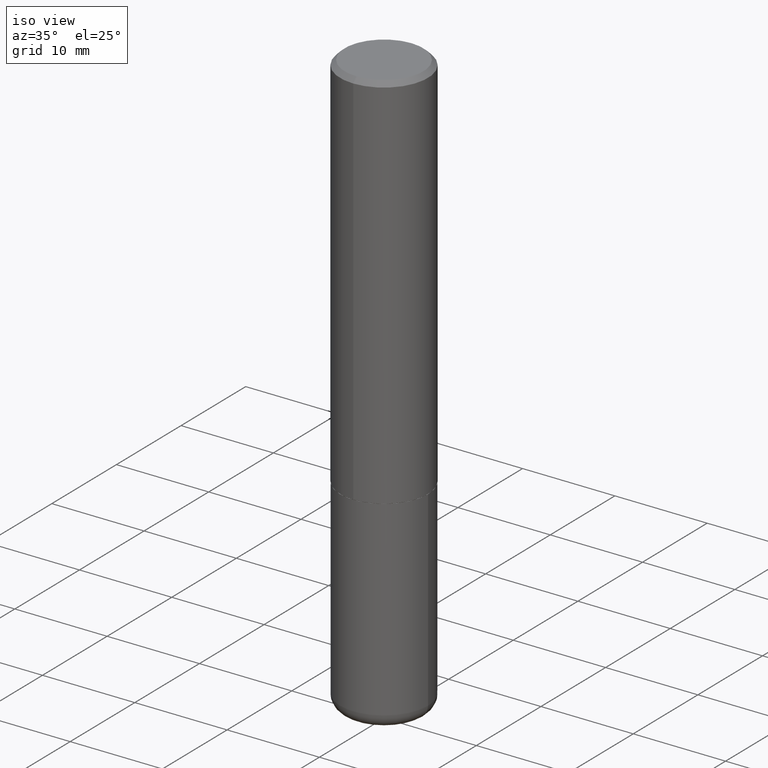
[diagram: clean part render]
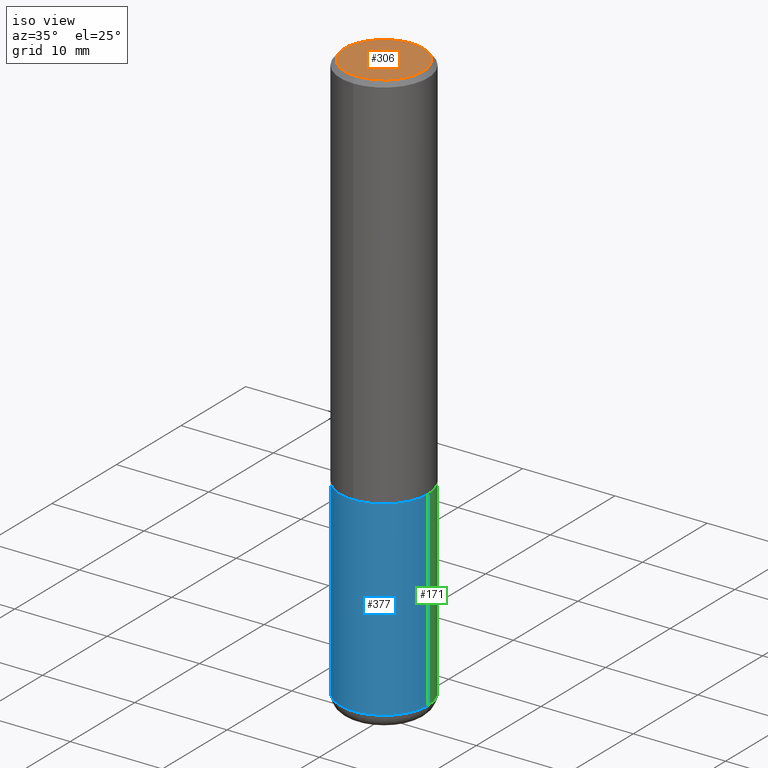
[diagram: same view with three faces highlighted in distinct colors, each labeled with its STEP entity id]
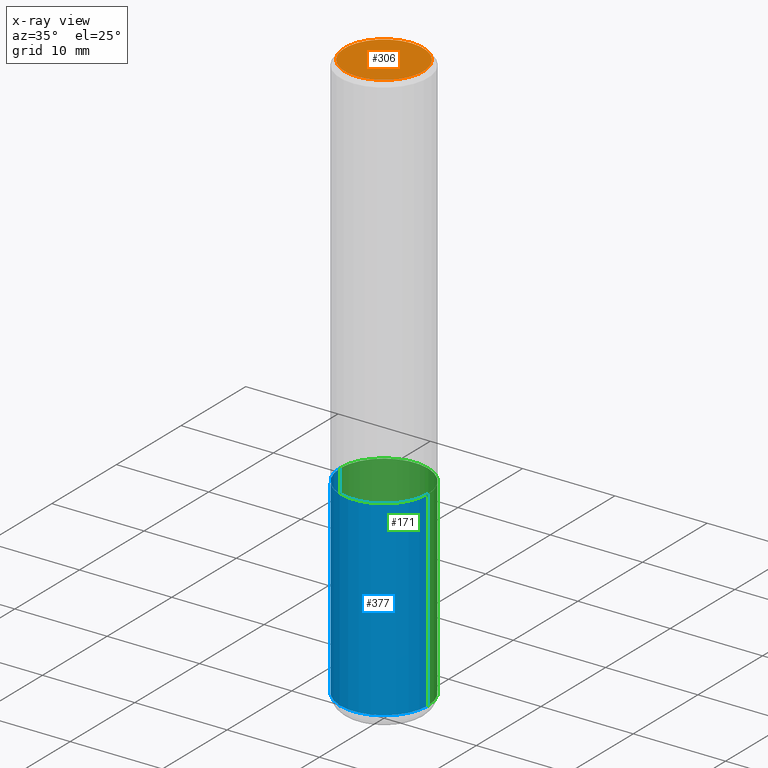
[diagram: x-ray of the same camera — body ghosted, the three highlighted faces saturated]
A machine part, iso view with three faces highlighted in distinct colors.
The next image is the same camera in x-ray (body ghosted, the three faces saturated) — at least one of them is partly hidden behind the body in this view.
Their STEP definitions:

[orange] entity #306 — the highlighted planar face has unit normal (0, -0, -1).
#7 = EDGE_CURVE ( 'NONE', #244, #278, #225, .T. ) ;
#9 = DIRECTION ( 'NONE',  ( 2.445663447522104049E-29, -3.491202601370310888E-15, -1.000000000000000000 ) ) ;
#26 = ORIENTED_EDGE ( 'NONE', *, *, #228, .T. ) ;
#34 = DIRECTION ( 'NONE',  ( -2.445663447522104049E-29, 3.491202601370311283E-15, 1.000000000000000000 ) ) ;
#80 = CARTESIAN_POINT ( 'NONE',  ( 1.169646248512448806E-15, 0.1674999999999998990, -5.378461426017720867E-16 ) ) ;
#136 = AXIS2_PLACEMENT_3D ( 'NONE', #319, #413, #216 ) ;
#149 = AXIS2_PLACEMENT_3D ( 'NONE', #80, #9, #261 ) ;
#200 = PLANE ( 'NONE',  #149 ) ;
#204 = ORIENTED_EDGE ( 'NONE', *, *, #7, .T. ) ;
#208 = EDGE_LOOP ( 'NONE', ( #204, #26 ) ) ;
#216 = DIRECTION ( 'NONE',  ( -6.982962677686265922E-15, -1.000000000000000000, 3.491202601370310888E-15 ) ) ;
#225 = CIRCLE ( 'NONE', #226, 0.1674999999999998990 ) ;
#226 = AXIS2_PLACEMENT_3D ( 'NONE', #418, #34, #386 ) ;
#228 = EDGE_CURVE ( 'NONE', #278, #244, #316, .T. ) ;
#244 = VERTEX_POINT ( 'NONE', #314 ) ;
#259 = CARTESIAN_POINT ( 'NONE',  ( -1.217738394604445850E-15, -0.1674999999999998990, 6.786370219850360017E-16 ) ) ;
#261 = DIRECTION ( 'NONE',  ( 6.982962677686265922E-15, 1.000000000000000000, -3.491202601370310888E-15 ) ) ;
#278 = VERTEX_POINT ( 'NONE', #259 ) ;
#292 = FACE_OUTER_BOUND ( 'NONE', #208, .T. ) ;
#306 = ADVANCED_FACE ( 'NONE', ( #292 ), #200, .F. ) ;
#314 = CARTESIAN_POINT ( 'NONE',  ( 1.239475875289311907E-15, 0.1674999999999998990, -4.909158494740175798E-16 ) ) ;
#316 = CIRCLE ( 'NONE', #136, 0.1674999999999998990 ) ;
#319 = CARTESIAN_POINT ( 'NONE',  ( -2.295514049680946619E-45, 3.276863229013765432E-31, 9.386058625550929724E-17 ) ) ;
#386 = DIRECTION ( 'NONE',  ( -6.982962677686265922E-15, -1.000000000000000000, 3.491202601370310888E-15 ) ) ;
#413 = DIRECTION ( 'NONE',  ( -2.445663447522104049E-29, 3.491202601370311283E-15, 1.000000000000000000 ) ) ;
#418 = CARTESIAN_POINT ( 'NONE',  ( -2.295514049680946619E-45, 3.276863229013765432E-31, 9.386058625550929724E-17 ) ) ;

[blue] entity #377 — the highlighted cylindrical surface (partial cylindrical patch) has radius 4.7625 mm, axis along (-0, 0, 1).
#12 = CARTESIAN_POINT ( 'NONE',  ( 0.000000000000000000, 0.000000000000000000, 0.000000000000000000 ) ) ;
#25 = DIRECTION ( 'NONE',  ( 1.000000000000000000, -6.982962677686266711E-15, 4.876176775795935793E-29 ) ) ;
#28 = CARTESIAN_POINT ( 'NONE',  ( 5.966943887091733341E-29, -8.519214466777275048E-15, -2.440000000000000391 ) ) ;
#42 = CARTESIAN_POINT ( 'NONE',  ( 0.1875000000000000278, -6.982962677686288010E-15, -1.625000000000000222 ) ) ;
#58 = CARTESIAN_POINT ( 'NONE',  ( -0.1875000000000000278, -5.764168191648507360E-15, -1.625000000000000222 ) ) ;
#70 = DIRECTION ( 'NONE',  ( 1.000000000000000000, -6.982962677686263555E-15, 0.000000000000000000 ) ) ;
#82 = FACE_OUTER_BOUND ( 'NONE', #167, .T. ) ;
#84 = DIRECTION ( 'NONE',  ( -2.445468806185136597E-29, 3.491481338843145583E-15, 1.000000000000000000 ) ) ;
#89 = VERTEX_POINT ( 'NONE', #159 ) ;
#94 = DIRECTION ( 'NONE',  ( -2.445468806185136597E-29, 3.491481338843145583E-15, 1.000000000000000000 ) ) ;
#97 = CARTESIAN_POINT ( 'NONE',  ( 0.1874999999999999722, -1.309305502066174811E-15, 9.142831454617378210E-30 ) ) ;
#117 = CYLINDRICAL_SURFACE ( 'NONE', #164, 0.1874999999999999722 ) ;
#135 = VERTEX_POINT ( 'NONE', #58 ) ;
#141 = EDGE_CURVE ( 'NONE', #326, #89, #258, .T. ) ;
#145 = ORIENTED_EDGE ( 'NONE', *, *, #168, .F. ) ;
#156 = DIRECTION ( 'NONE',  ( -2.445468806185136877E-29, 3.491481338843145188E-15, 1.000000000000000000 ) ) ;
#159 = CARTESIAN_POINT ( 'NONE',  ( 0.1874999999999999722, -9.828519968843450056E-15, -2.440000000000000391 ) ) ;
#164 = AXIS2_PLACEMENT_3D ( 'NONE', #12, #84, #25 ) ;
#167 = EDGE_LOOP ( 'NONE', ( #145, #347, #206, #280 ) ) ;
#168 = EDGE_CURVE ( 'NONE', #326, #135, #189, .T. ) ;
#189 = LINE ( 'NONE', #255, #201 ) ;
#198 = DIRECTION ( 'NONE',  ( -2.445468806185136597E-29, 3.491481338843145583E-15, 1.000000000000000000 ) ) ;
#201 = VECTOR ( 'NONE', #390, 39.37007874015748143 ) ;
#206 = ORIENTED_EDGE ( 'NONE', *, *, #371, .T. ) ;
#229 = AXIS2_PLACEMENT_3D ( 'NONE', #28, #94, #70 ) ;
#255 = CARTESIAN_POINT ( 'NONE',  ( -0.1874999999999999722, 1.332267629550187651E-15, -9.223003294227946589E-30 ) ) ;
#258 = CIRCLE ( 'NONE', #229, 0.1874999999999999722 ) ;
#263 = AXIS2_PLACEMENT_3D ( 'NONE', #361, #198, #324 ) ;
#280 = ORIENTED_EDGE ( 'NONE', *, *, #358, .F. ) ;
#312 = VERTEX_POINT ( 'NONE', #42 ) ;
#324 = DIRECTION ( 'NONE',  ( 1.000000000000000000, -6.982962677686266711E-15, 0.000000000000000000 ) ) ;
#326 = VERTEX_POINT ( 'NONE', #359 ) ;
#347 = ORIENTED_EDGE ( 'NONE', *, *, #141, .T. ) ;
#358 = EDGE_CURVE ( 'NONE', #135, #312, #369, .T. ) ;
#359 = CARTESIAN_POINT ( 'NONE',  ( -0.1874999999999999722, -7.186946837227088777E-15, -2.440000000000000391 ) ) ;
#361 = CARTESIAN_POINT ( 'NONE',  ( 3.973886810050848091E-29, -5.673657175620113002E-15, -1.625000000000000222 ) ) ;
#369 = CIRCLE ( 'NONE', #263, 0.1875000000000000278 ) ;
#370 = LINE ( 'NONE', #97, #375 ) ;
#371 = EDGE_CURVE ( 'NONE', #89, #312, #370, .T. ) ;
#375 = VECTOR ( 'NONE', #156, 39.37007874015748143 ) ;
#377 = ADVANCED_FACE ( 'NONE', ( #82 ), #117, .T. ) ;
#390 = DIRECTION ( 'NONE',  ( -2.445468806185136877E-29, 3.491481338843145188E-15, 1.000000000000000000 ) ) ;

[green] entity #171 — the highlighted cylindrical surface (partial cylindrical patch) has radius 4.7625 mm, axis along (-0, 0, 1).
#10 = CARTESIAN_POINT ( 'NONE',  ( 5.966943887091733341E-29, -8.519214466777275048E-15, -2.440000000000000391 ) ) ;
#13 = AXIS2_PLACEMENT_3D ( 'NONE', #318, #71, #196 ) ;
#24 = CIRCLE ( 'NONE', #109, 0.1874999999999999722 ) ;
#42 = CARTESIAN_POINT ( 'NONE',  ( 0.1875000000000000278, -6.982962677686288010E-15, -1.625000000000000222 ) ) ;
#48 = EDGE_CURVE ( 'NONE', #312, #135, #391, .T. ) ;
#58 = CARTESIAN_POINT ( 'NONE',  ( -0.1875000000000000278, -5.764168191648507360E-15, -1.625000000000000222 ) ) ;
#63 = CYLINDRICAL_SURFACE ( 'NONE', #130, 0.1874999999999999722 ) ;
#64 = ORIENTED_EDGE ( 'NONE', *, *, #168, .T. ) ;
#65 = FACE_OUTER_BOUND ( 'NONE', #409, .T. ) ;
#71 = DIRECTION ( 'NONE',  ( -2.445468806185136597E-29, 3.491481338843145583E-15, 1.000000000000000000 ) ) ;
#89 = VERTEX_POINT ( 'NONE', #159 ) ;
#97 = CARTESIAN_POINT ( 'NONE',  ( 0.1874999999999999722, -1.309305502066174811E-15, 9.142831454617378210E-30 ) ) ;
#98 = DIRECTION ( 'NONE',  ( -2.445468806185136597E-29, 3.491481338843145583E-15, 1.000000000000000000 ) ) ;
#102 = DIRECTION ( 'NONE',  ( -2.445468806185136597E-29, 3.491481338843145583E-15, 1.000000000000000000 ) ) ;
#109 = AXIS2_PLACEMENT_3D ( 'NONE', #10, #102, #327 ) ;
#130 = AXIS2_PLACEMENT_3D ( 'NONE', #279, #98, #313 ) ;
#135 = VERTEX_POINT ( 'NONE', #58 ) ;
#156 = DIRECTION ( 'NONE',  ( -2.445468806185136877E-29, 3.491481338843145188E-15, 1.000000000000000000 ) ) ;
#159 = CARTESIAN_POINT ( 'NONE',  ( 0.1874999999999999722, -9.828519968843450056E-15, -2.440000000000000391 ) ) ;
#168 = EDGE_CURVE ( 'NONE', #326, #135, #189, .T. ) ;
#171 = ADVANCED_FACE ( 'NONE', ( #65 ), #63, .T. ) ;
#189 = LINE ( 'NONE', #255, #201 ) ;
#196 = DIRECTION ( 'NONE',  ( 1.000000000000000000, -6.982962677686266711E-15, 0.000000000000000000 ) ) ;
#201 = VECTOR ( 'NONE', #390, 39.37007874015748143 ) ;
#240 = ORIENTED_EDGE ( 'NONE', *, *, #315, .T. ) ;
#255 = CARTESIAN_POINT ( 'NONE',  ( -0.1874999999999999722, 1.332267629550187651E-15, -9.223003294227946589E-30 ) ) ;
#279 = CARTESIAN_POINT ( 'NONE',  ( 0.000000000000000000, 0.000000000000000000, 0.000000000000000000 ) ) ;
#297 = ORIENTED_EDGE ( 'NONE', *, *, #48, .F. ) ;
#312 = VERTEX_POINT ( 'NONE', #42 ) ;
#313 = DIRECTION ( 'NONE',  ( 1.000000000000000000, -6.982962677686266711E-15, 4.876176775795935793E-29 ) ) ;
#315 = EDGE_CURVE ( 'NONE', #89, #326, #24, .T. ) ;
#318 = CARTESIAN_POINT ( 'NONE',  ( 3.973886810050848091E-29, -5.673657175620113002E-15, -1.625000000000000222 ) ) ;
#326 = VERTEX_POINT ( 'NONE', #359 ) ;
#327 = DIRECTION ( 'NONE',  ( 1.000000000000000000, -6.982962677686263555E-15, 0.000000000000000000 ) ) ;
#359 = CARTESIAN_POINT ( 'NONE',  ( -0.1874999999999999722, -7.186946837227088777E-15, -2.440000000000000391 ) ) ;
#370 = LINE ( 'NONE', #97, #375 ) ;
#371 = EDGE_CURVE ( 'NONE', #89, #312, #370, .T. ) ;
#375 = VECTOR ( 'NONE', #156, 39.37007874015748143 ) ;
#376 = ORIENTED_EDGE ( 'NONE', *, *, #371, .F. ) ;
#390 = DIRECTION ( 'NONE',  ( -2.445468806185136877E-29, 3.491481338843145188E-15, 1.000000000000000000 ) ) ;
#391 = CIRCLE ( 'NONE', #13, 0.1875000000000000278 ) ;
#409 = EDGE_LOOP ( 'NONE', ( #240, #64, #297, #376 ) ) ;